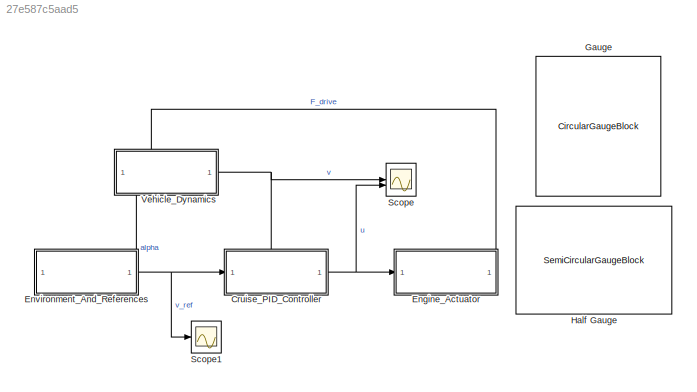
MODEL slx_27e587c5aad5
KIND model
CONFIG AbsTol = auto
CONFIG EnableMultiTasking = off
CONFIG FixedStep = auto
CONFIG MaxStep = auto
CONFIG MinStep = auto
CONFIG RelTol = 1e-3
CONFIG SampleTimeConstraint = Unconstrained
CONFIG SolverName = VariableStepAuto
CONFIG StartTime = 0.0
CONFIG StopTime = 500
WORKSPACE source: mxarray member
WORKSPACE Speed = 0
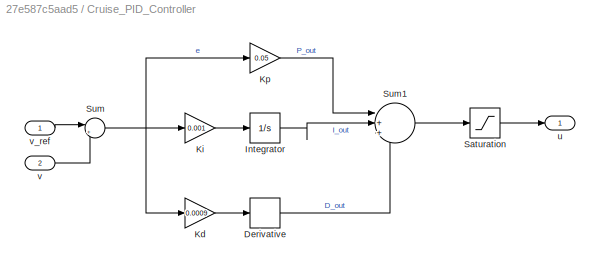
BLOCK [SubSystem] Cruise_PID_Controller
  PortSchema = {"entries":[{"content":{"sides":[{"content":{"connectorIds":["In1"]},"type":"ConnectorPlacement.EquallySpacedRectSide","uuid":"4f7b2cec-1f55-4aa2-adc3-78d965a4ba93"},{"content":{"connectorIds":["Out1"],"side":"RIGHT"},"type":"ConnectorPlacement.EquallySpacedRectSide","uuid":"dc063779-1c5c-4f62-b4ea-173b6becd76a"},{"content":{"connectorIds":["In2"],"side":"TOP"},"type":"ConnectorPlacement.EquallySp...<+245ch>
BLOCK [Derivative] Cruise_PID_Controller/Derivative
BLOCK [Integrator] Cruise_PID_Controller/Integrator
BLOCK [Gain] Cruise_PID_Controller/Kd
  Gain = 0.0009
BLOCK [Gain] Cruise_PID_Controller/Ki
  Gain = 0.001
BLOCK [Gain] Cruise_PID_Controller/Kp
  Gain = 0.05
BLOCK [Saturate] Cruise_PID_Controller/Saturation
  LowerLimit = 0
  UpperLimit = 1
BLOCK [Sum] Cruise_PID_Controller/Sum
  Inputs = |+-
BLOCK [Sum] Cruise_PID_Controller/Sum1
  Inputs = |+++
BLOCK [Outport] Cruise_PID_Controller/u
BLOCK [Inport] Cruise_PID_Controller/v
  Port = 2
BLOCK [Inport] Cruise_PID_Controller/v_ref
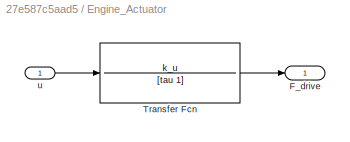
BLOCK [SubSystem] Engine_Actuator
  PortSchema = {"entries":[{"content":{"sides":[{"content":{"connectorIds":["In1"]},"type":"ConnectorPlacement.EquallySpacedRectSide","uuid":"4f7b2cec-1f55-4aa2-adc3-78d965a4ba93"},{"content":{"side":"RIGHT"},"type":"ConnectorPlacement.EquallySpacedRectSide","uuid":"dc063779-1c5c-4f62-b4ea-173b6becd76a"},{"content":{"connectorIds":["Out1"],"side":"TOP"},"type":"ConnectorPlacement.EquallySpacedRectSide","uuid":"7...<+222ch>
BLOCK [Outport] Engine_Actuator/F_drive
BLOCK [TransferFcn] Engine_Actuator/Transfer Fcn
  Denominator = [tau 1]
  Numerator = k_u
BLOCK [Inport] Engine_Actuator/u
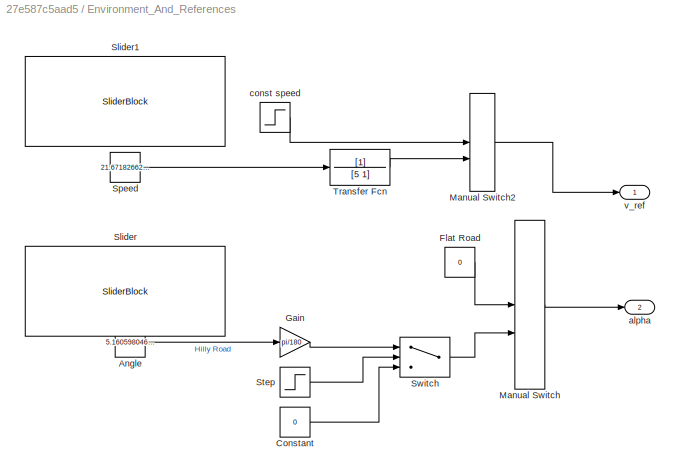
BLOCK [SubSystem] Environment_And_References
  PortSchema = {"entries":[{"content":{"sides":[{"content":{},"type":"ConnectorPlacement.EquallySpacedRectSide","uuid":"ae451857-5b4e-464d-997a-c710032e5fb5"},{"content":{"connectorIds":["Out1"],"side":"RIGHT"},"type":"ConnectorPlacement.EquallySpacedRectSide","uuid":"c10e79a9-55a4-4f6b-8bb4-e981ed946527"},{"content":{"connectorIds":["Out2"],"side":"TOP"},"type":"ConnectorPlacement.EquallySpacedRectSide","uuid":...<+224ch>
BLOCK [Constant] Environment_And_References/Angle
  Value = 5.160598046270316
BLOCK [Constant] Environment_And_References/Constant
  Value = 0
BLOCK [Constant] Environment_And_References/Flat Road
  Value = 0
BLOCK [Gain] Environment_And_References/Gain
  Gain = pi/180
BLOCK [ManualSwitch] Environment_And_References/Manual Switch
  CurrentSetting = 0
BLOCK [ManualSwitch] Environment_And_References/Manual Switch2
BLOCK [SliderBlock] Environment_And_References/Slider
  ScaleMax = 45
  ScaleMin = -45
BLOCK [SliderBlock] Environment_And_References/Slider1
  ScaleMax = 70
BLOCK [Constant] Environment_And_References/Speed
  Value = 21.671826625387
BLOCK [Step] Environment_And_References/Step
  After = 2
  SampleTime = 0
  Time = 150
BLOCK [Switch] Environment_And_References/Switch
  Criteria = u2 > Threshold
  InputSameDT = off
  SaturateOnIntegerOverflow = off
  Threshold = 1
BLOCK [TransferFcn] Environment_And_References/Transfer Fcn
  Denominator = [5 1]
BLOCK [Outport] Environment_And_References/alpha
  Port = 2
BLOCK [Step] Environment_And_References/const speed
  After = 20
  SampleTime = 0
  Time = 5
BLOCK [Outport] Environment_And_References/v_ref
BLOCK [CircularGaugeBlock] Gauge
  ScaleMax = 70
BLOCK [SemiCircularGaugeBlock] Half Gauge
  ScaleMax = 1
BLOCK [Scope] Scope
  Floating = off
  NumInputPorts = 2
  ScopeSpecificationString = Simulink.scopes.TimeScopeBlockCfg('CurrentConfiguration', extmgr.ConfigurationSet(extmgr.Configuration('Core','General UI',true,'DisplayFullSourceName',false,'ShowMainToolbar',true,'FigureColor',[0.129411764705882 0.129411764705882 0.129411764705882]),extmgr.Configuration('Sources','WiredSimulink',true,'DataLogging',false,'DataLoggingVariableName','ScopeData2','DataLoggingLimitDataPoints',false,'D...<+3129ch>
BLOCK [Scope] Scope1
  Floating = off
  NumInputPorts = 1
  ScopeSpecificationString = Simulink.scopes.TimeScopeBlockCfg('CurrentConfiguration', extmgr.ConfigurationSet(extmgr.Configuration('Core','General UI',true,'DisplayFullSourceName',false,'ShowMainToolbar',true,'FigureColor',[0.129411764705882 0.129411764705882 0.129411764705882]),extmgr.Configuration('Sources','WiredSimulink',true,'DataLogging',false,'DataLoggingVariableName','ScopeData5','DataLoggingLimitDataPoints',false,'D...<+2207ch>
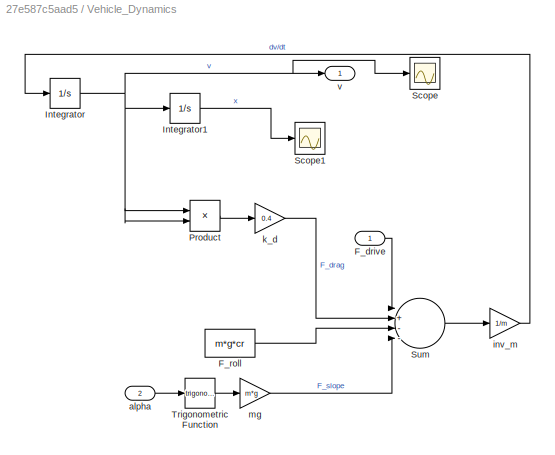
BLOCK [SubSystem] Vehicle_Dynamics
BLOCK [Inport] Vehicle_Dynamics/F_drive
BLOCK [Constant] Vehicle_Dynamics/F_roll
  Value = m*g*cr
BLOCK [Integrator] Vehicle_Dynamics/Integrator
BLOCK [Integrator] Vehicle_Dynamics/Integrator1
BLOCK [Product] Vehicle_Dynamics/Product
BLOCK [Scope] Vehicle_Dynamics/Scope
  Floating = off
  NumInputPorts = 1
  ScopeSpecificationString = Simulink.scopes.TimeScopeBlockCfg('CurrentConfiguration', extmgr.ConfigurationSet(extmgr.Configuration('Core','General UI',true,'DisplayFullSourceName',false,'ShowMainToolbar',true,'FigureColor',[0.129411764705882 0.129411764705882 0.129411764705882]),extmgr.Configuration('Sources','WiredSimulink',true,'DataLogging',false,'DataLoggingVariableName','ScopeData3','DataLoggingLimitDataPoints',false,'D...<+2194ch>
BLOCK [Scope] Vehicle_Dynamics/Scope1
  ContainerLayout = {"WindowBounds":[-13,-29.666666666666742,1295,805]}
  Floating = off
  NumInputPorts = 1
  ScopeSpecificationString = Simulink.scopes.TimeScopeBlockCfg('CurrentConfiguration', extmgr.ConfigurationSet(extmgr.Configuration('Core','General UI',true,'DisplayFullSourceName',false,'ShowMainToolbar',true,'FigureColor',[0.129411764705882 0.129411764705882 0.129411764705882]),extmgr.Configuration('Sources','WiredSimulink',true,'DataLogging',false,'DataLoggingVariableName','ScopeData4','DataLoggingLimitDataPoints',false,'D...<+2244ch>
BLOCK [Sum] Vehicle_Dynamics/Sum
  Inputs = |+---|
BLOCK [Trigonometry] Vehicle_Dynamics/Trigonometric Function
BLOCK [Inport] Vehicle_Dynamics/alpha
  Port = 2
BLOCK [Gain] Vehicle_Dynamics/inv_m
  Gain = 1/m
BLOCK [Gain] Vehicle_Dynamics/k_d
  Gain = 0.4
BLOCK [Gain] Vehicle_Dynamics/mg
  Gain = m*g
BLOCK [Outport] Vehicle_Dynamics/v
LINE Cruise_PID_Controller/Derivative:1 -> Cruise_PID_Controller/Sum1:3
LINE Cruise_PID_Controller/Integrator:1 -> Cruise_PID_Controller/Sum1:2
LINE Cruise_PID_Controller/Kd:1 -> Cruise_PID_Controller/Derivative:1
LINE Cruise_PID_Controller/Ki:1 -> Cruise_PID_Controller/Integrator:1
LINE Cruise_PID_Controller/Kp:1 -> Cruise_PID_Controller/Sum1:1
LINE Cruise_PID_Controller/Saturation:1 -> Cruise_PID_Controller/u:1
LINE Cruise_PID_Controller/Sum1:1 -> Cruise_PID_Controller/Saturation:1
NET Cruise_PID_Controller/Sum:1 -> Cruise_PID_Controller/Kd:1, Cruise_PID_Controller/Ki:1, Cruise_PID_Controller/Kp:1
LINE Cruise_PID_Controller/v:1 -> Cruise_PID_Controller/Sum:2
LINE Cruise_PID_Controller/v_ref:1 -> Cruise_PID_Controller/Sum:1
NET Cruise_PID_Controller:1 -> Engine_Actuator:1, Scope:2
LINE Engine_Actuator/Transfer Fcn:1 -> Engine_Actuator/F_drive:1
LINE Engine_Actuator/u:1 -> Engine_Actuator/Transfer Fcn:1
LINE Engine_Actuator:1 -> Vehicle_Dynamics:1
LINE Environment_And_References/Angle:1 -> Environment_And_References/Gain:1
LINE Environment_And_References/Constant:1 -> Environment_And_References/Switch:3
LINE Environment_And_References/Flat Road:1 -> Environment_And_References/Manual Switch:1
LINE Environment_And_References/Gain:1 -> Environment_And_References/Switch:1
LINE Environment_And_References/Manual Switch2:1 -> Environment_And_References/v_ref:1
LINE Environment_And_References/Manual Switch:1 -> Environment_And_References/alpha:1
LINE Environment_And_References/Speed:1 -> Environment_And_References/Transfer Fcn:1
LINE Environment_And_References/Step:1 -> Environment_And_References/Switch:2
LINE Environment_And_References/Switch:1 -> Environment_And_References/Manual Switch:2
LINE Environment_And_References/Transfer Fcn:1 -> Environment_And_References/Manual Switch2:2
LINE Environment_And_References/const speed:1 -> Environment_And_References/Manual Switch2:1
NET Environment_And_References:1 -> Cruise_PID_Controller:1, Scope1:1
LINE Environment_And_References:2 -> Vehicle_Dynamics:2
LINE Vehicle_Dynamics/F_drive:1 -> Vehicle_Dynamics/Sum:1
LINE Vehicle_Dynamics/F_roll:1 -> Vehicle_Dynamics/Sum:3
LINE Vehicle_Dynamics/Integrator1:1 -> Vehicle_Dynamics/Scope1:1
NET Vehicle_Dynamics/Integrator:1 -> Vehicle_Dynamics/Integrator1:1, Vehicle_Dynamics/Product:1, Vehicle_Dynamics/Product:2, Vehicle_Dynamics/Scope:1, Vehicle_Dynamics/v:1
LINE Vehicle_Dynamics/Product:1 -> Vehicle_Dynamics/k_d:1
LINE Vehicle_Dynamics/Sum:1 -> Vehicle_Dynamics/inv_m:1
LINE Vehicle_Dynamics/Trigonometric Function:1 -> Vehicle_Dynamics/mg:1
LINE Vehicle_Dynamics/alpha:1 -> Vehicle_Dynamics/Trigonometric Function:1
LINE Vehicle_Dynamics/inv_m:1 -> Vehicle_Dynamics/Integrator:1
LINE Vehicle_Dynamics/k_d:1 -> Vehicle_Dynamics/Sum:2
LINE Vehicle_Dynamics/mg:1 -> Vehicle_Dynamics/Sum:4
NET Vehicle_Dynamics:1 -> Cruise_PID_Controller:2, Scope:1
note: NET lines group one-source signal fan-out (src -> all destinations, sorted); 1:1 wires keep LINE
